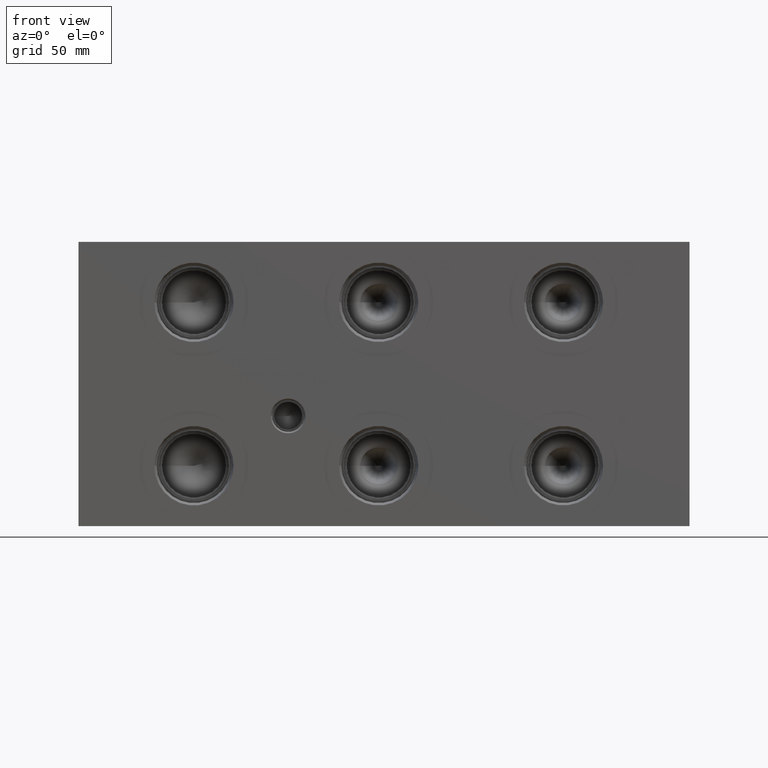
[diagram: clean part render]
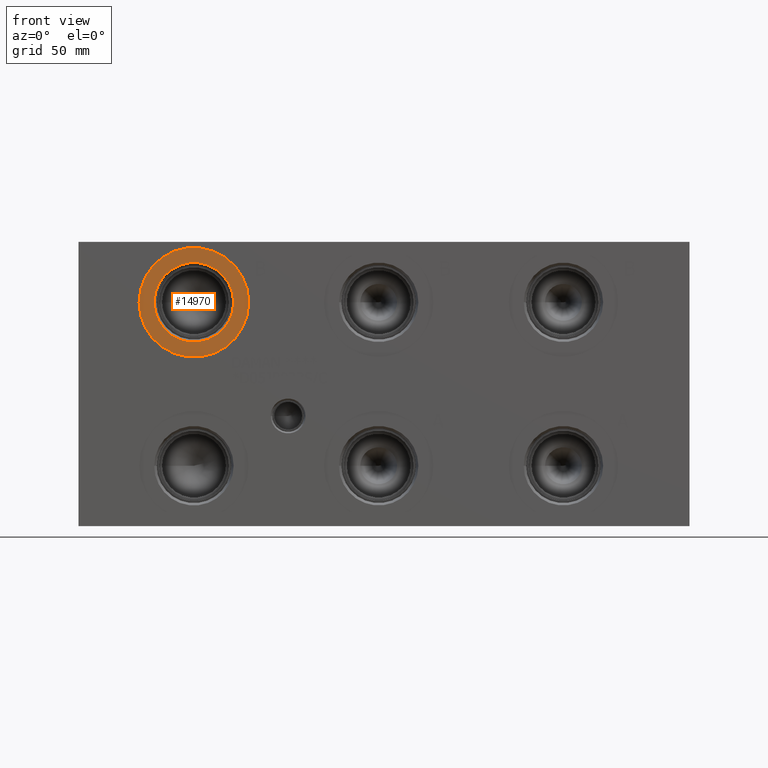
[diagram: same view with one face highlighted and labeled with its STEP entity id]
A machine part, front view. The second image highlights one B-rep face of the part: STEP entity #14970.
In plain terms, the highlighted planar face has unit normal (0, 1, 0).
Its self-contained STEP definition (entity closure, byte-faithful):
#748=CIRCLE('',#15911,24.4856);
#749=CIRCLE('',#15912,24.4856);
#750=CIRCLE('',#15914,17.7546);
#751=CIRCLE('',#15915,17.7546);
#1305=FACE_BOUND('',#2947,.T.);
#2069=FACE_OUTER_BOUND('',#2946,.T.);
#2946=EDGE_LOOP('',(#12998,#12999));
#2947=EDGE_LOOP('',(#13000,#13001));
#6980=VERTEX_POINT('',#25918);
#6981=VERTEX_POINT('',#25920);
#6982=VERTEX_POINT('',#25924);
#6983=VERTEX_POINT('',#25925);
#9030=EDGE_CURVE('',#6980,#6981,#748,.T.);
#9031=EDGE_CURVE('',#6981,#6980,#749,.T.);
#9032=EDGE_CURVE('',#6982,#6983,#750,.T.);
#9033=EDGE_CURVE('',#6983,#6982,#751,.T.);
#12998=ORIENTED_EDGE('',*,*,#9031,.F.);
#12999=ORIENTED_EDGE('',*,*,#9030,.F.);
#13000=ORIENTED_EDGE('',*,*,#9032,.T.);
#13001=ORIENTED_EDGE('',*,*,#9033,.T.);
#13710=PLANE('',#15913);
#14970=ADVANCED_FACE('',(#2069,#1305),#13710,.F.);
#15911=AXIS2_PLACEMENT_3D('',#25921,#19029,#19030);
#15912=AXIS2_PLACEMENT_3D('',#25922,#19031,#19032);
#15913=AXIS2_PLACEMENT_3D('',#25923,#19033,#19034);
#15914=AXIS2_PLACEMENT_3D('',#25926,#19035,#19036);
#15915=AXIS2_PLACEMENT_3D('',#25927,#19037,#19038);
#19029=DIRECTION('center_axis',(0.,1.,0.));
#19030=DIRECTION('ref_axis',(1.,0.,0.));
#19031=DIRECTION('center_axis',(0.,1.,0.));
#19032=DIRECTION('ref_axis',(1.,0.,0.));
#19033=DIRECTION('center_axis',(0.,1.,0.));
#19034=DIRECTION('ref_axis',(0.,0.,1.));
#19035=DIRECTION('center_axis',(0.,1.,0.));
#19036=DIRECTION('ref_axis',(1.,0.,0.));
#19037=DIRECTION('center_axis',(0.,1.,0.));
#19038=DIRECTION('ref_axis',(1.,0.,0.));
#25918=CARTESIAN_POINT('',(27.1018,0.7874,99.9998));
#25920=CARTESIAN_POINT('',(76.073,0.7874,99.9998));
#25921=CARTESIAN_POINT('Origin',(51.5874,0.7874,99.9998));
#25922=CARTESIAN_POINT('Origin',(51.5874,0.7874,99.9998));
#25923=CARTESIAN_POINT('Origin',(69.342,0.7874,99.9998));
#25924=CARTESIAN_POINT('',(69.342,0.7874,99.9998));
#25925=CARTESIAN_POINT('',(33.8328,0.787399999999998,99.9998));
#25926=CARTESIAN_POINT('Origin',(51.5874,0.7874,99.9998));
#25927=CARTESIAN_POINT('Origin',(51.5874,0.7874,99.9998));